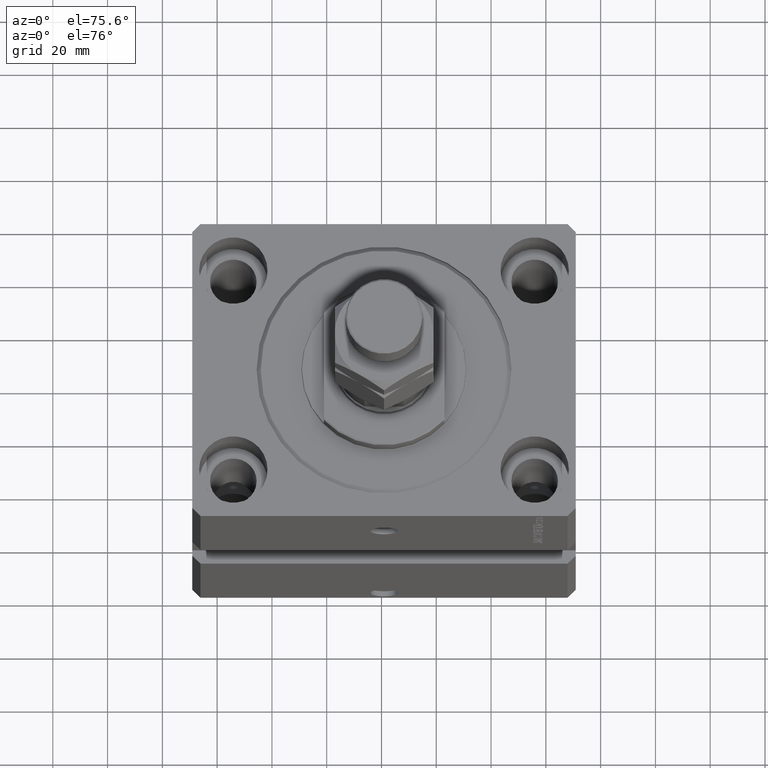
[diagram: clean part render]
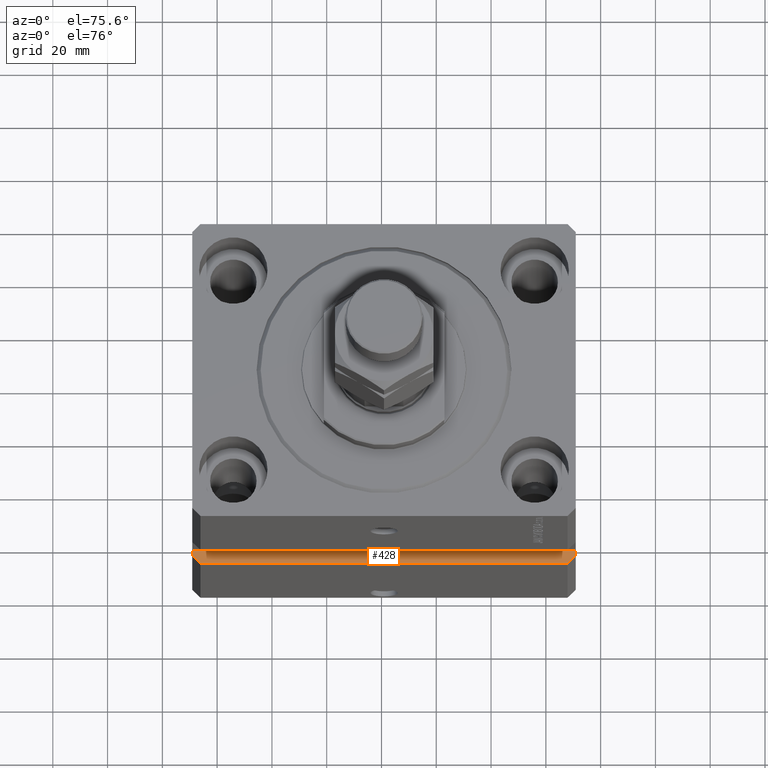
[diagram: same view with one face highlighted and labeled with its STEP entity id]
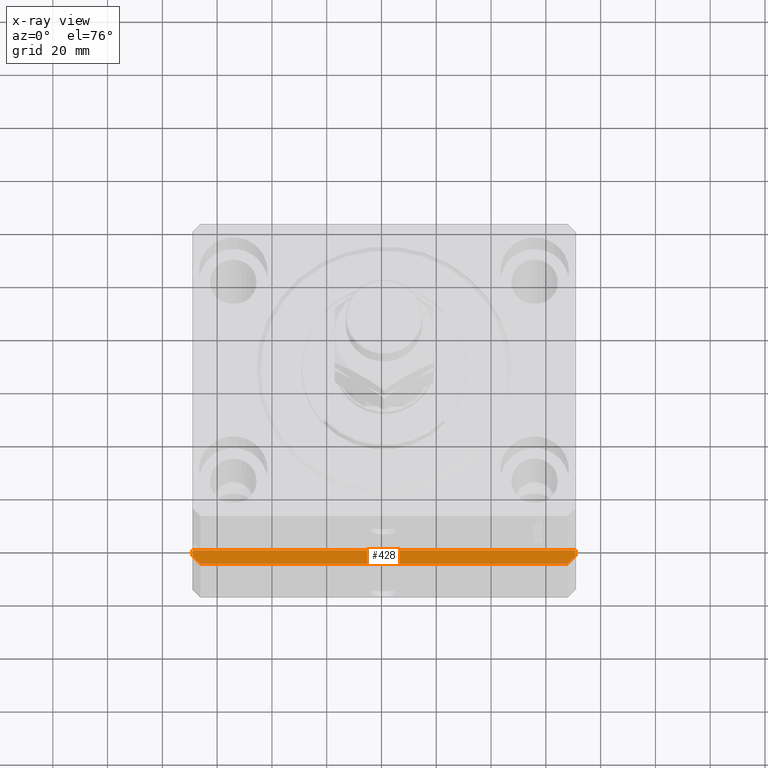
[diagram: x-ray of the same camera — body ghosted, the highlighted face saturated]
A machine part, auxiliary view. The second image highlights one B-rep face of the part: STEP entity #428.
The next image is the same camera in x-ray: the body ghosted, the highlighted face saturated — about 0% of this face is hidden behind the body in this view.
In plain terms, the highlighted planar face has unit normal (0, 0, -1).
Its self-contained STEP definition (entity closure, byte-faithful):
#428 = ADVANCED_FACE ( 'NONE', ( #42905 ), #42414, .F. ) ;
#636 = ORIENTED_EDGE ( 'NONE', *, *, #47279, .T. ) ;
#1446 = CARTESIAN_POINT ( 'NONE',  ( -70.00000000000001421, -49.99999999999999289, -70.00000000000000000 ) ) ;
#4701 = LINE ( 'NONE', #19420, #26579 ) ;
#7443 = EDGE_CURVE ( 'NONE', #38608, #30423, #4701, .T. ) ;
#8203 = VERTEX_POINT ( 'NONE', #32561 ) ;
#8396 = EDGE_CURVE ( 'NONE', #8203, #44504, #30986, .T. ) ;
#9633 = EDGE_CURVE ( 'NONE', #30423, #32306, #30176, .T. ) ;
#10049 = CARTESIAN_POINT ( 'NONE',  ( -70.00000000000001421, -49.99999999999999289, -70.00000000000000000 ) ) ;
#10081 = LINE ( 'NONE', #39798, #39972 ) ;
#12300 = DIRECTION ( 'NONE',  ( 1.176083712526788232E-16, -1.000000000000000000, -0.000000000000000000 ) ) ;
#12958 = CARTESIAN_POINT ( 'NONE',  ( 67.00000000000001421, -54.99999999999997868, -70.00000000000000000 ) ) ;
#14198 = VECTOR ( 'NONE', #29535, 1000.000000000000000 ) ;
#14813 = CARTESIAN_POINT ( 'NONE',  ( -70.00000000000001421, -54.99999999999999289, -70.00000000000000000 ) ) ;
#14974 = ORIENTED_EDGE ( 'NONE', *, *, #7443, .F. ) ;
#15029 = VECTOR ( 'NONE', #46214, 1000.000000000000114 ) ;
#16175 = VERTEX_POINT ( 'NONE', #12958 ) ;
#16292 = CARTESIAN_POINT ( 'NONE',  ( 70.00000000000001421, -49.99999999999997868, -70.00000000000000000 ) ) ;
#16804 = DIRECTION ( 'NONE',  ( -1.000000000000000000, 0.000000000000000000, -0.000000000000000000 ) ) ;
#17057 = EDGE_CURVE ( 'NONE', #16175, #32306, #10081, .T. ) ;
#17376 = EDGE_LOOP ( 'NONE', ( #26104, #25364, #14974, #26209, #33205, #636 ) ) ;
#19420 = CARTESIAN_POINT ( 'NONE',  ( -70.00000000000001421, -49.99999999999999289, -70.00000000000000000 ) ) ;
#21631 = CARTESIAN_POINT ( 'NONE',  ( -67.00000000000002842, -54.99999999999999289, -70.00000000000000000 ) ) ;
#24487 = LINE ( 'NONE', #14813, #14198 ) ;
#25024 = CARTESIAN_POINT ( 'NONE',  ( -70.00000000000001421, -49.99999999999999289, -70.00000000000000000 ) ) ;
#25364 = ORIENTED_EDGE ( 'NONE', *, *, #9633, .F. ) ;
#26104 = ORIENTED_EDGE ( 'NONE', *, *, #17057, .T. ) ;
#26209 = ORIENTED_EDGE ( 'NONE', *, *, #32939, .T. ) ;
#26579 = VECTOR ( 'NONE', #34140, 1000.000000000000000 ) ;
#26641 = VECTOR ( 'NONE', #45401, 1000.000000000000000 ) ;
#29381 = DIRECTION ( 'NONE',  ( 0.7071067811865474617, 0.7071067811865474617, 0.000000000000000000 ) ) ;
#29535 = DIRECTION ( 'NONE',  ( 1.000000000000000000, 9.912705577010323084E-17, 0.000000000000000000 ) ) ;
#30176 = LINE ( 'NONE', #37909, #26641 ) ;
#30301 = AXIS2_PLACEMENT_3D ( 'NONE', #25024, #43155, #16804 ) ;
#30423 = VERTEX_POINT ( 'NONE', #16292 ) ;
#30986 = LINE ( 'NONE', #31457, #15029 ) ;
#31457 = CARTESIAN_POINT ( 'NONE',  ( -70.00000000000001421, -51.99999999999999289, -70.00000000000000000 ) ) ;
#32306 = VERTEX_POINT ( 'NONE', #46592 ) ;
#32561 = CARTESIAN_POINT ( 'NONE',  ( -70.00000000000001421, -51.99999999999999289, -70.00000000000000000 ) ) ;
#32939 = EDGE_CURVE ( 'NONE', #38608, #8203, #45167, .T. ) ;
#33205 = ORIENTED_EDGE ( 'NONE', *, *, #8396, .T. ) ;
#34140 = DIRECTION ( 'NONE',  ( 1.000000000000000000, 9.912705577010323084E-17, 0.000000000000000000 ) ) ;
#37909 = CARTESIAN_POINT ( 'NONE',  ( 70.00000000000001421, -49.99999999999997868, -70.00000000000000000 ) ) ;
#38531 = VECTOR ( 'NONE', #12300, 1000.000000000000000 ) ;
#38608 = VERTEX_POINT ( 'NONE', #10049 ) ;
#39798 = CARTESIAN_POINT ( 'NONE',  ( 67.00000000000001421, -54.99999999999997868, -70.00000000000000000 ) ) ;
#39972 = VECTOR ( 'NONE', #29381, 1000.000000000000114 ) ;
#42414 = PLANE ( 'NONE',  #30301 ) ;
#42905 = FACE_OUTER_BOUND ( 'NONE', #17376, .T. ) ;
#43155 = DIRECTION ( 'NONE',  ( 0.000000000000000000, 0.000000000000000000, -1.000000000000000000 ) ) ;
#44504 = VERTEX_POINT ( 'NONE', #21631 ) ;
#45167 = LINE ( 'NONE', #1446, #38531 ) ;
#45401 = DIRECTION ( 'NONE',  ( 1.176083712526788232E-16, -1.000000000000000000, -0.000000000000000000 ) ) ;
#46214 = DIRECTION ( 'NONE',  ( 0.7071067811865465735, -0.7071067811865483499, 0.000000000000000000 ) ) ;
#46592 = CARTESIAN_POINT ( 'NONE',  ( 70.00000000000001421, -51.99999999999997868, -70.00000000000000000 ) ) ;
#47279 = EDGE_CURVE ( 'NONE', #44504, #16175, #24487, .T. ) ;